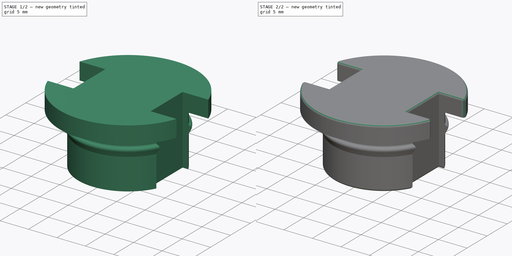
[diagram: build sequence overview — one tinted view per stage of 2, left to right]
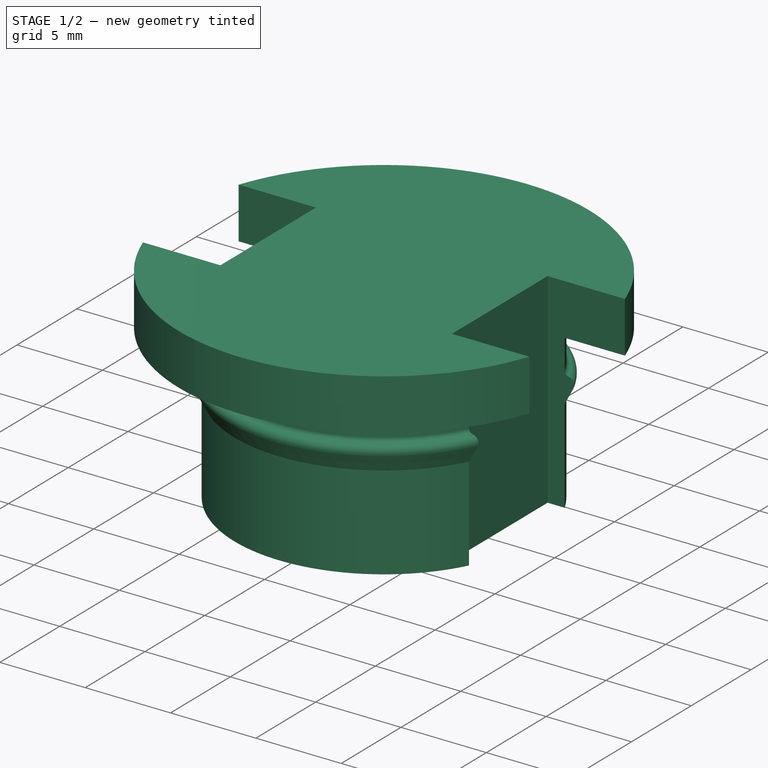
[diagram: stage 1 of 2 — iso view after this stage's code; geometry added in this stage tinted green]
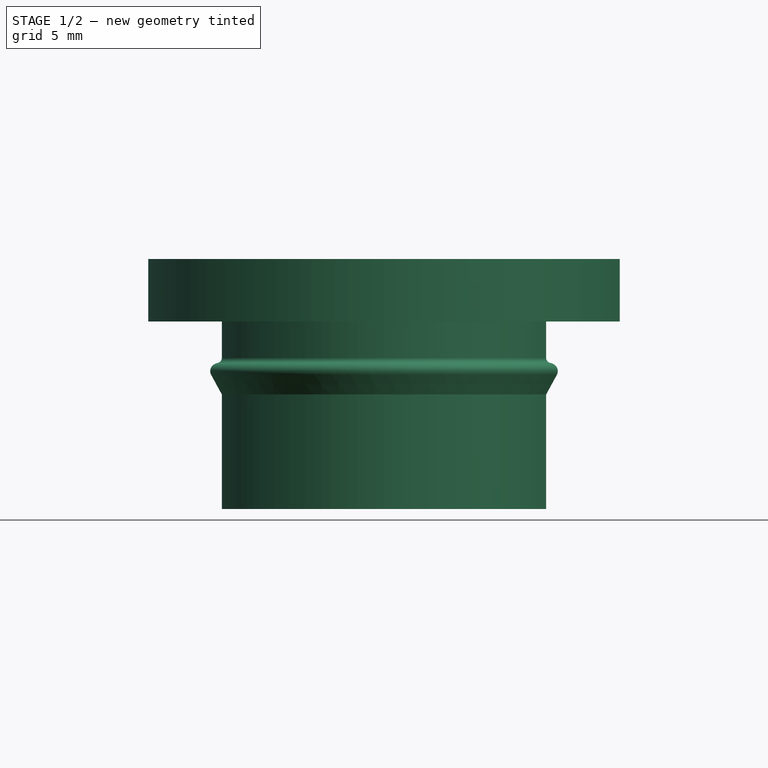
[diagram: stage 1 of 2 — front view after this stage's code; geometry added in this stage tinted green]
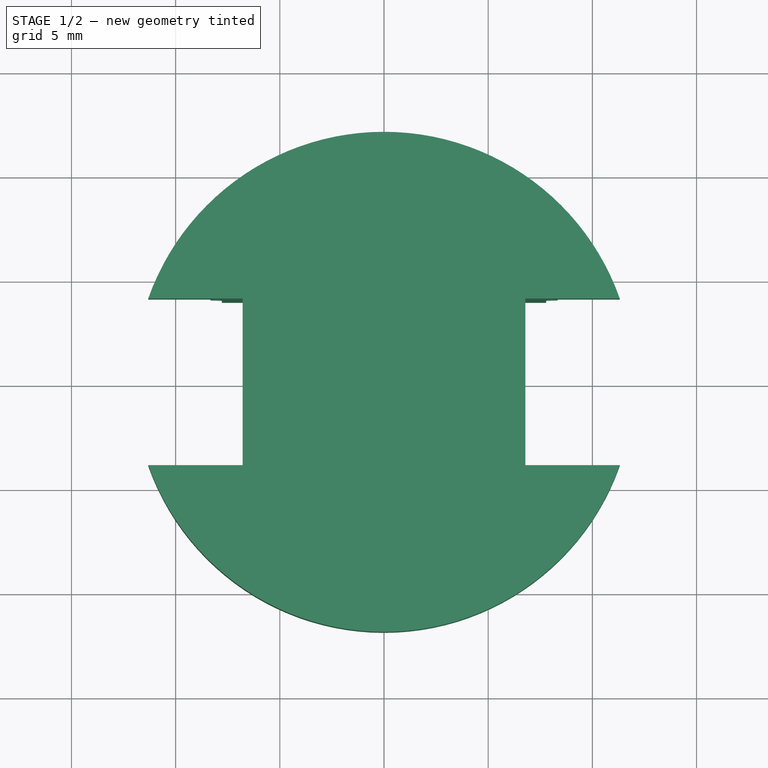
[diagram: stage 1 of 2 — top view after this stage's code; geometry added in this stage tinted green]
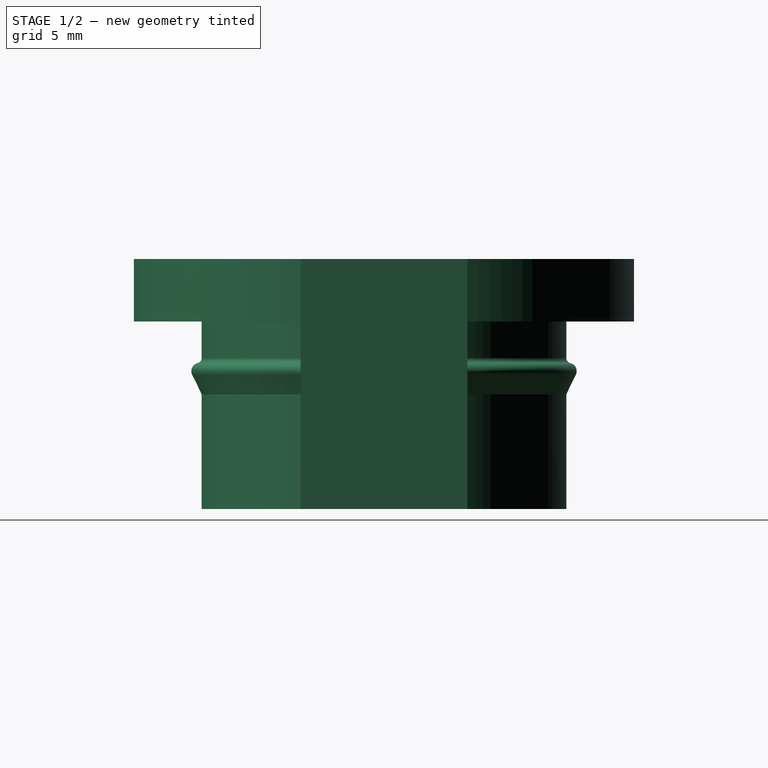
[diagram: stage 1 of 2 — right view after this stage's code; geometry added in this stage tinted green]
FCSTD DOCUMENT  (FreeCAD 2022.709R28846 (Git))
Label: bottle_cap
License: Other
objects: Sketcher::SketchObject×2, PartDesign::Revolution×1, PartDesign::Pocket×1, PartDesign::Fillet×1, PartDesign::Body×1, App::Part×1
note: 12 computed .brp shape members not serialized (recipe doc carries the construction recipe); baked Part::Feature solids carry a one-line shape summary decoded from their .brp

FEATURE [Sketcher::SketchObject] Sketch
  ArcFitTolerance = 1e-06
  AttachmentSupport = -> [XZ_Plane]
  FullyConstrained = true
  MapMode = 5
  Placement = pos=(0,0,0) rot=(1,0,0;1.5708rad)
  Support = -> [XZ_Plane]
  TreeRank = 14
  sketch-geometry (11):
    g0: LineSegment StartX=0 StartY=0 StartZ=0 EndX=-8.75 EndY=0 EndZ=0
    g1: LineSegment StartX=-8.75 StartY=0 StartZ=0 EndX=-8.75 EndY=5.5 EndZ=0
    g2: LineSegment StartX=-8.75 StartY=7.25 StartZ=0 EndX=-8.75 EndY=9 EndZ=0
    g3: LineSegment StartX=-8.75 StartY=9 StartZ=0 EndX=-12 EndY=9 EndZ=0
    g4: LineSegment StartX=-12 StartY=9 StartZ=0 EndX=-12 EndY=12 EndZ=0
    g5: LineSegment StartX=-12 StartY=12 StartZ=0 EndX=0 EndY=12 EndZ=0
    g6: LineSegment StartX=0 StartY=12 StartZ=0 EndX=0 EndY=0 EndZ=0
    g7: ArcOfCircle CenterX=-8.85 CenterY=6.61754 CenterZ=0 NormalX=0 NormalY=0 NormalZ=1 AngleXU=0 Radius=0.4 StartAngle=1.80366 EndAngle=3.59536
    g8: LineSegment StartX=-9.20952 StartY=6.4422 StartZ=0 EndX=-8.75 EndY=5.5 EndZ=0
    g9: LineSegment [constr] StartX=-9.25 StartY=6.61754 StartZ=0 EndX=-9.25 EndY=9 EndZ=0
    g10: ArcOfCircle CenterX=-9 CenterY=7.25 CenterZ=0 NormalX=0 NormalY=0 NormalZ=1 AngleXU=0 Radius=0.25 StartAngle=4.94526 EndAngle=6.28319
  constraints (32):
    c: Coincident(g-1,g0)
    c: PointOnObject(g0,g-1)
    c: Coincident(g0,g1)
    c: Vertical(g1)
    c: Vertical(g2)
    c: Coincident(g2,g3)
    c: Horizontal(g3)
    c: Coincident(g3,g4)
    c: Vertical(g4)
    c: Coincident(g4,g5)
    c: Horizontal(g5)
    c: Coincident(g5,g6)
    c: Coincident(g6,g0)
    c: Vertical(g6)
    c: DistanceX(g0,g0) = 8.75
    c: DistanceY(g6,g6) = 12
    c: DistanceX(g5,g5) = 12
    c: DistanceY(g4,g4) = 3
    c: Tangent(g7,g8) = -1.5708
    c: Coincident(g8,g1)
    c: Radius(g7) = 0.4
    c: PointOnObject(g9,g7)
    c: PointOnObject(g9,g3)
    c: Vertical(g9)
    c: DistanceX(g9,g2) = 0.5
    c: Tangent(g7,g9)
    c: Radius(g10) = 0.25
    c: Tangent(g10,g7) = 1.5708
    c: Vertical(g2,g1)
    c: DistanceY(g1,g2) = 1.75
    c: Tangent(g2,g10) = -1.5708
    c: DistanceY(g2,g2) = 1.75
FEATURE [PartDesign::Revolution] Revolution
  Angle = 360
  Axis = (0,-2e-16,1)
  Base = (0,0,0)
  ClaimChildren = false
  Fit = 0
  FitJoin = 0
  InnerFit = 0
  InnerFitJoin = 0
  NewSolid = false
  Placement = pos=(0,0,0) rot=(1,0,0;1.5708rad)
  Profile = -> Sketch
  ReferenceAxis = -> Sketch [V_Axis]
  Suppress = false
  TreeRank = 15
  _ProfileBasedVersion = 1
FEATURE [Sketcher::SketchObject] Sketch001
  ArcFitTolerance = 1e-06
  AttachmentSupport = -> [Revolution]
  ExternalGeometry = -> [Revolution]
  FullyConstrained = true
  MapMode = 5
  Placement = pos=(0,-2.7e-15,12) rot=(0,0,1;3.14159rad)
  Support = -> [Revolution]
  TreeRank = 16
  sketch-geometry (9):
    g0: LineSegment StartX=-12.7822 StartY=4 StartZ=0 EndX=-6.78219 EndY=4 EndZ=0
    g1: LineSegment StartX=-6.78219 StartY=4 StartZ=0 EndX=-6.78219 EndY=-4 EndZ=0
    g2: LineSegment StartX=-6.78219 StartY=-4 StartZ=0 EndX=-12.7822 EndY=-4 EndZ=0
    g3: LineSegment StartX=-12.7822 StartY=-4 StartZ=0 EndX=-12.7822 EndY=4 EndZ=0
    g4: GeomPoint [constr] X=-7.78219 Y=4 Z=0
    g5: LineSegment StartX=6.78219 StartY=4 StartZ=0 EndX=12.7822 EndY=4 EndZ=0
    g6: LineSegment StartX=12.7822 StartY=4 StartZ=0 EndX=12.7822 EndY=-4 EndZ=0
    g7: LineSegment StartX=12.7822 StartY=-4 StartZ=0 EndX=6.78219 EndY=-4 EndZ=0
    g8: LineSegment StartX=6.78219 StartY=-4 StartZ=0 EndX=6.78219 EndY=4 EndZ=0
  constraints (24):
    c: Coincident(g0,g1)
    c: Coincident(g1,g2)
    c: Coincident(g2,g3)
    c: Coincident(g3,g0)
    c: Horizontal(g0)
    c: Horizontal(g2)
    c: Vertical(g3)
    c: DistanceY(g1,g1) = 8
    c: Symmetric(g0,g1,g-1)
    c: PointOnObject(g4,g-3)
    c: PointOnObject(g4,g0)
    c: DistanceX(g4,g0) = 1
    c: DistanceX(g2,g2) = 6
    c: Coincident(g5,g6)
    c: Coincident(g6,g7)
    c: Coincident(g7,g8)
    c: Coincident(g8,g5)
    c: Horizontal(g5)
    c: Horizontal(g7)
    c: Vertical(g6)
    c: Vertical(g8)
    c: Equal(g5,g0)
    c: Equal(g3,g6)
    c: Symmetric(g5,g0,g-2)
FEATURE [PartDesign::Pocket] Pocket
  BaseFeature = -> Revolution
  ClaimChildren = false
  Fit = 0
  FitJoin = 0
  InnerFit = 0
  InnerFitJoin = 0
  InnerTaperAngle = 0
  InnerTaperAngleRev = 0
  Length = 5
  Length2 = 100
  Linearize = true
  NewSolid = false
  Placement = pos=(0,0,0) rot=(1,0,0;1.5708rad)
  Profile = -> Sketch001
  Suppress = false
  TreeRank = 17
  Type = 1
  _ProfileBasedVersion = 1
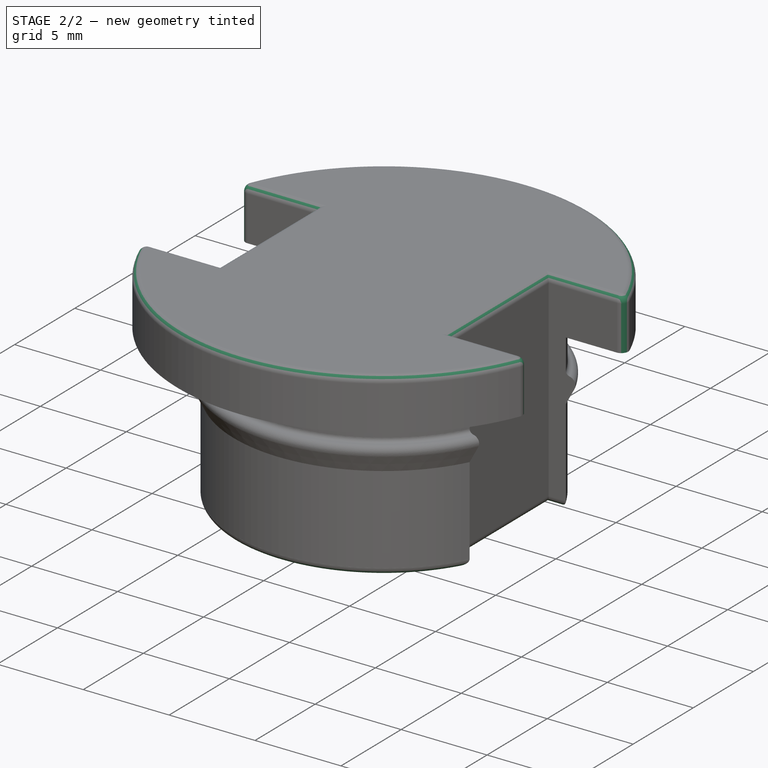
[diagram: stage 2 of 2 — iso view after this stage's code; geometry added in this stage tinted green]
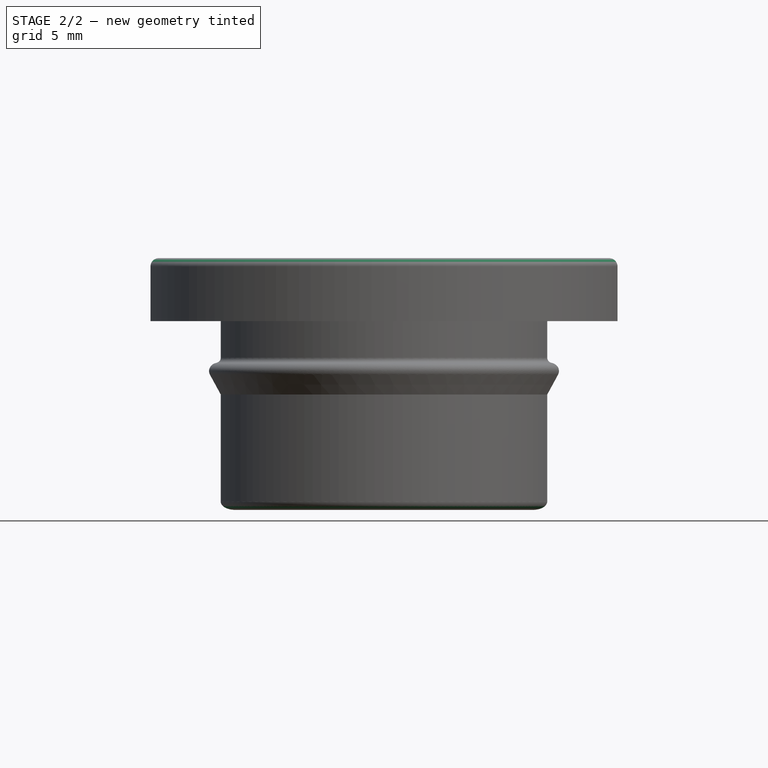
[diagram: stage 2 of 2 — front view after this stage's code; geometry added in this stage tinted green]
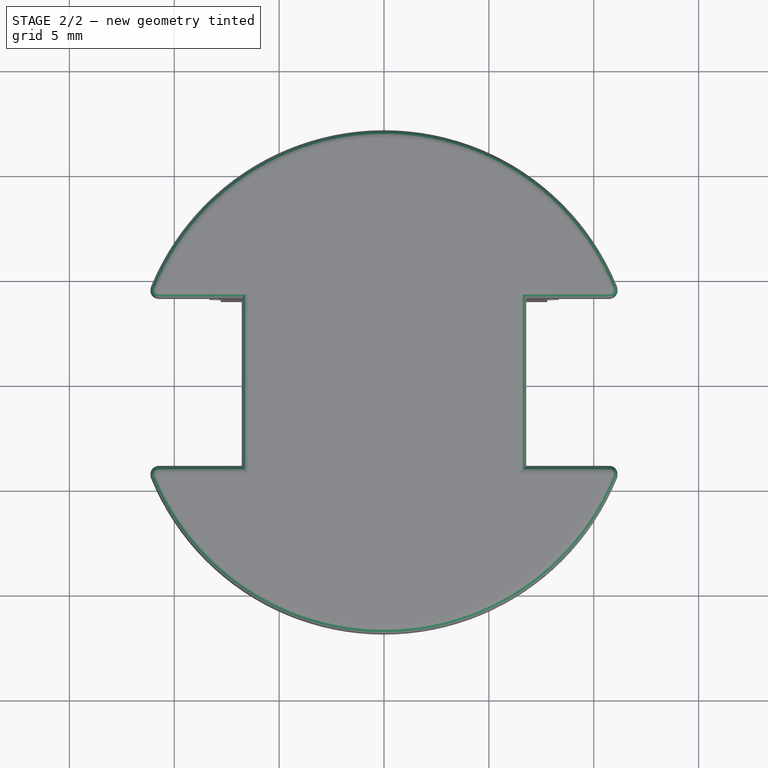
[diagram: stage 2 of 2 — top view after this stage's code; geometry added in this stage tinted green]
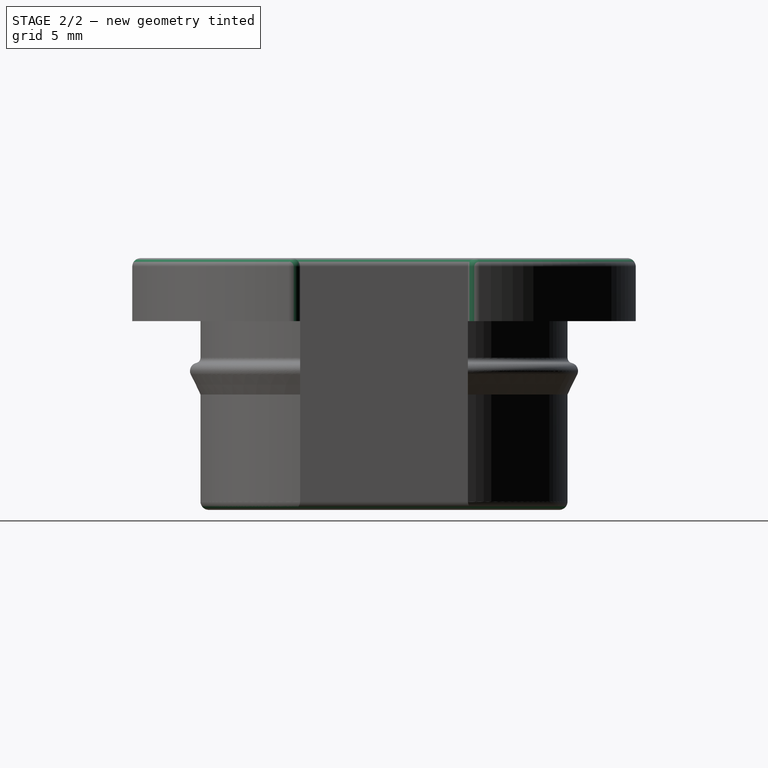
[diagram: stage 2 of 2 — right view after this stage's code; geometry added in this stage tinted green]
FEATURE [PartDesign::Fillet] Fillet
  Base = -> Pocket [Edge34,Edge38,Edge25,Edge29,Edge5,Edge30,Edge16,Edge28,Edge27,Edge26,Edge47,Edge6,Edge49,Edge23,Edge18,Edge35,Edge12,Edge37,Edge36,Edge33]
  BaseFeature = -> Pocket
  NewSolid = false
  Placement = pos=(0,0,0) rot=(1,0,0;1.5708rad)
  Radius = 0.4
  SupportTransform = false
  Suppress = false
  TreeRank = 18
FEATURE [PartDesign::Body] Body
  AutoGroupSolids = false
  ClaimAllChildren = false
  ExportMode = 0
  Group = -> [Sketch,Revolution,Sketch001,Pocket,Fillet]
  Origin = -> Origin001
  Tip = -> Fillet
  TreeRank = 13
  _ExportChildren = -> [Revolution,Pocket,Fillet]
  _GroupVersion = 1
FEATURE [App::Part] Part
  ClaimAllChildren = false
  ExportMode = 1
  Group = -> [Body]
  Origin = -> Origin
  TreeRank = 3
  _ExportChildren = -> [Body]
  _GroupVersion = 1
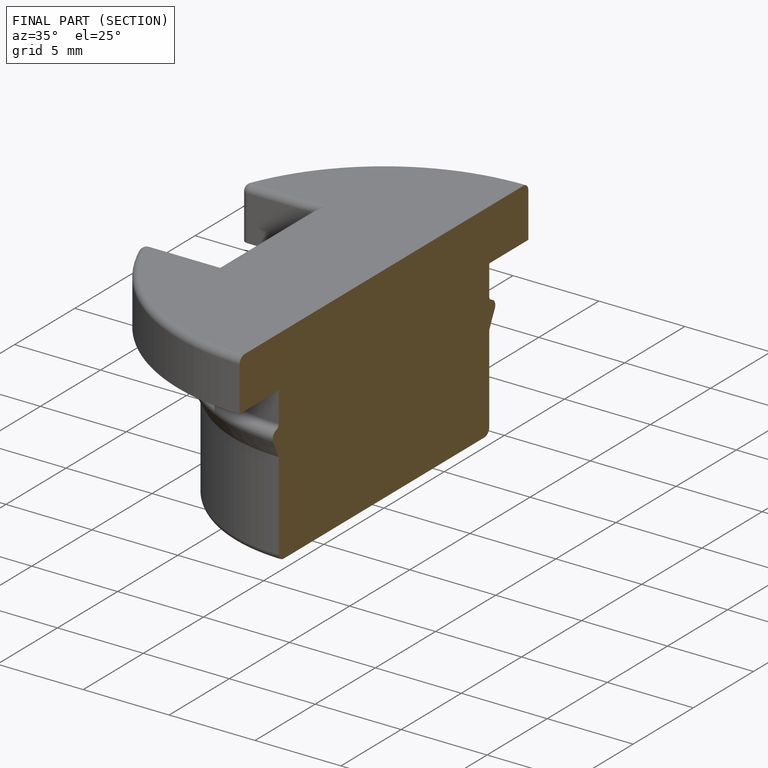
[diagram: finished part — half-section view (interior)]
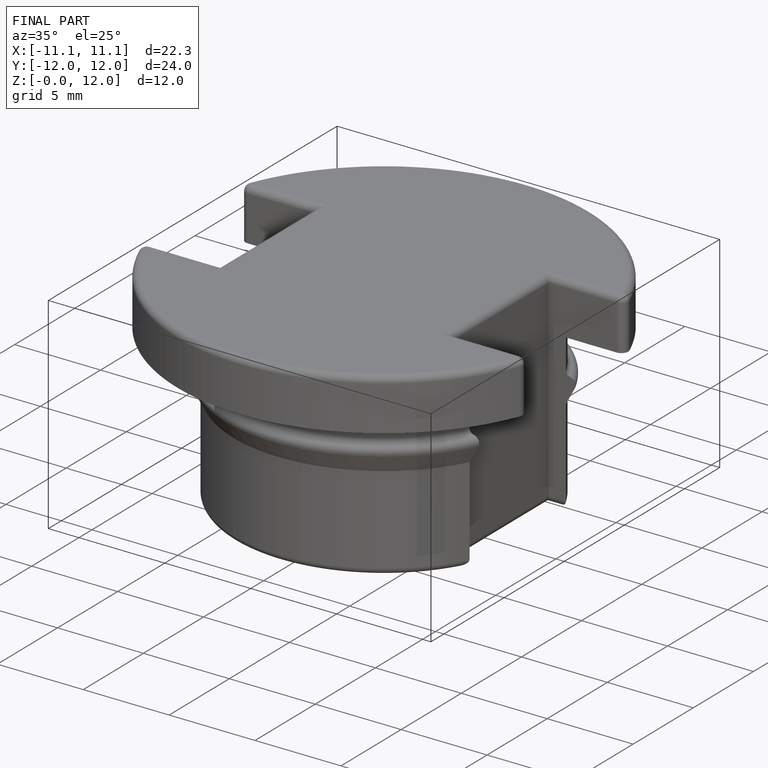
[diagram: finished part — iso view with bounding-box wireframe]
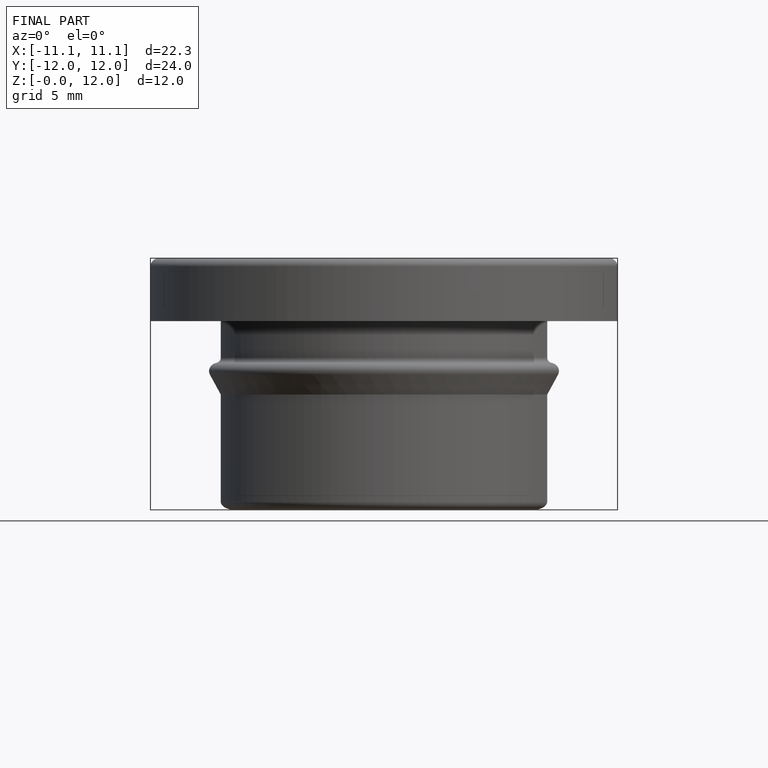
[diagram: finished part — front view with bounding-box wireframe]
